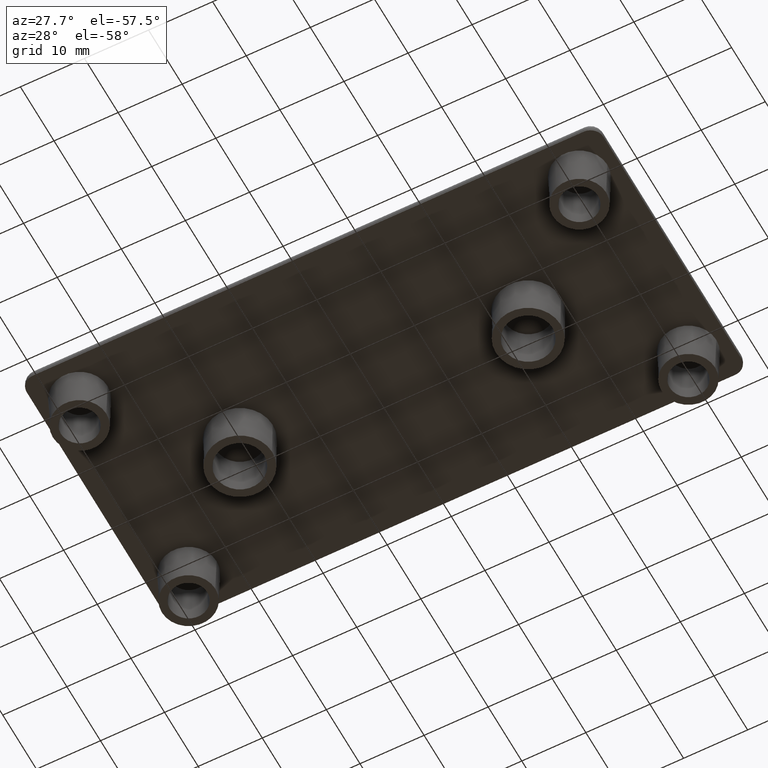
[diagram: clean part render]
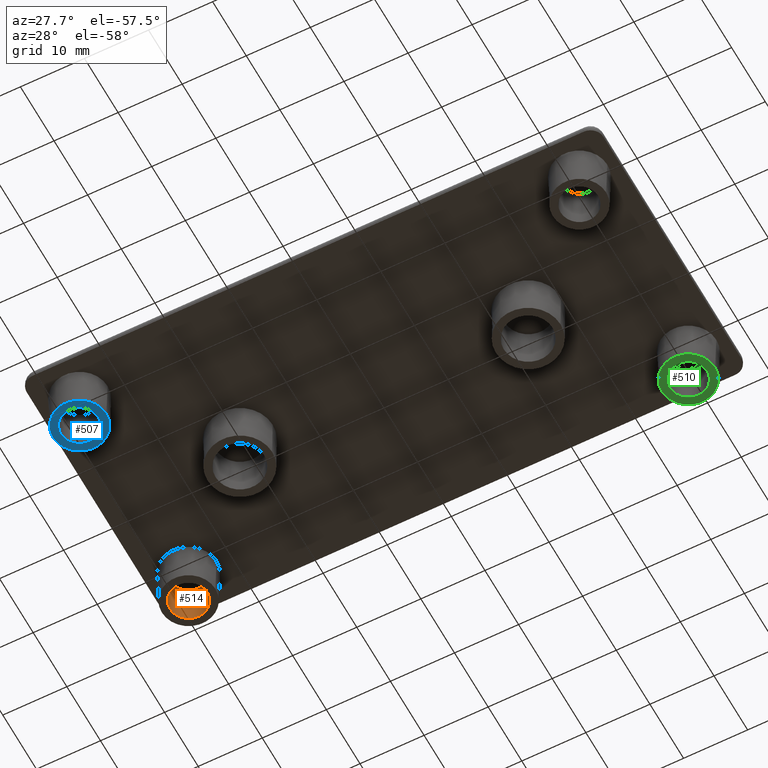
[diagram: same view with three faces highlighted in distinct colors, each labeled with its STEP entity id]
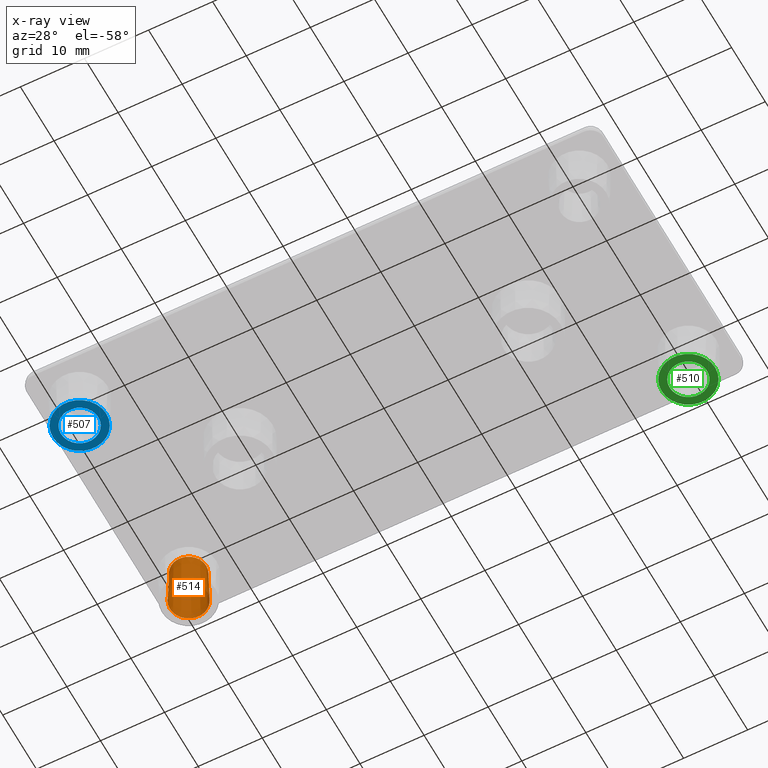
[diagram: x-ray of the same camera — body ghosted, the three highlighted faces saturated]
A machine part, auxiliary view with three faces highlighted in distinct colors.
The next image is the same camera in x-ray (body ghosted, the three faces saturated) — at least one of them is partly hidden behind the body in this view.
Their STEP definitions:

[orange] entity #514 — the highlighted conical surface has half-angle 1.5 deg.
#106=FACE_BOUND('',#194,.T.);
#130=FACE_OUTER_BOUND('',#193,.T.);
#193=EDGE_LOOP('',(#413));
#194=EDGE_LOOP('',(#414));
#242=CIRCLE('',#584,2.925);
#243=CIRCLE('',#585,2.74169854901569);
#290=VERTEX_POINT('',#894);
#291=VERTEX_POINT('',#896);
#334=EDGE_CURVE('',#290,#290,#242,.T.);
#335=EDGE_CURVE('',#291,#291,#243,.T.);
#413=ORIENTED_EDGE('',*,*,#334,.F.);
#414=ORIENTED_EDGE('',*,*,#335,.F.);
#491=CONICAL_SURFACE('',#583,2.925,1.5);
#514=ADVANCED_FACE('',(#130,#106),#491,.F.);
#583=AXIS2_PLACEMENT_3D('',#893,#721,#722);
#584=AXIS2_PLACEMENT_3D('',#895,#723,#724);
#585=AXIS2_PLACEMENT_3D('',#897,#725,#726);
#721=DIRECTION('center_axis',(0.,0.,-1.));
#722=DIRECTION('ref_axis',(-1.,0.,0.));
#723=DIRECTION('center_axis',(0.,0.,1.));
#724=DIRECTION('ref_axis',(-1.,0.,0.));
#725=DIRECTION('center_axis',(0.,0.,-1.));
#726=DIRECTION('ref_axis',(-1.,0.,0.));
#893=CARTESIAN_POINT('Origin',(-39.,16.2,-7.));
#894=CARTESIAN_POINT('',(-36.075,16.2,-7.));
#895=CARTESIAN_POINT('Origin',(-39.,16.2,-7.));
#896=CARTESIAN_POINT('',(-36.2583014509843,16.2,0.));
#897=CARTESIAN_POINT('Origin',(-39.,16.2,0.));

[blue] entity #507 — the highlighted planar face has unit normal (0, 0, 1).
#73=PLANE('',#573);
#102=FACE_BOUND('',#183,.T.);
#123=FACE_OUTER_BOUND('',#182,.T.);
#182=EDGE_LOOP('',(#402));
#183=EDGE_LOOP('',(#403));
#236=CIRCLE('',#569,2.925);
#238=CIRCLE('',#572,4.175);
#284=VERTEX_POINT('',#873);
#286=VERTEX_POINT('',#878);
#328=EDGE_CURVE('',#284,#284,#236,.T.);
#330=EDGE_CURVE('',#286,#286,#238,.T.);
#402=ORIENTED_EDGE('',*,*,#330,.T.);
#403=ORIENTED_EDGE('',*,*,#328,.T.);
#507=ADVANCED_FACE('',(#123,#102),#73,.F.);
#569=AXIS2_PLACEMENT_3D('',#874,#693,#694);
#572=AXIS2_PLACEMENT_3D('',#879,#699,#700);
#573=AXIS2_PLACEMENT_3D('',#880,#701,#702);
#693=DIRECTION('center_axis',(0.,0.,1.));
#694=DIRECTION('ref_axis',(-1.,0.,0.));
#699=DIRECTION('center_axis',(0.,0.,-1.));
#700=DIRECTION('ref_axis',(-1.,0.,0.));
#701=DIRECTION('center_axis',(0.,0.,1.));
#702=DIRECTION('ref_axis',(1.,0.,0.));
#873=CARTESIAN_POINT('',(-36.075,-16.2,-7.));
#874=CARTESIAN_POINT('Origin',(-39.,-16.2,-7.));
#878=CARTESIAN_POINT('',(-34.825,-16.2,-7.));
#879=CARTESIAN_POINT('Origin',(-39.,-16.2,-7.));
#880=CARTESIAN_POINT('Origin',(-39.,-16.2,-7.));

[green] entity #510 — the highlighted planar face has unit normal (0, 0, 1).
#74=PLANE('',#579);
#105=FACE_BOUND('',#189,.T.);
#126=FACE_OUTER_BOUND('',#188,.T.);
#188=EDGE_LOOP('',(#408));
#189=EDGE_LOOP('',(#409));
#239=CIRCLE('',#575,2.925);
#241=CIRCLE('',#578,4.175);
#287=VERTEX_POINT('',#882);
#289=VERTEX_POINT('',#887);
#331=EDGE_CURVE('',#287,#287,#239,.T.);
#333=EDGE_CURVE('',#289,#289,#241,.T.);
#408=ORIENTED_EDGE('',*,*,#333,.T.);
#409=ORIENTED_EDGE('',*,*,#331,.T.);
#510=ADVANCED_FACE('',(#126,#105),#74,.F.);
#575=AXIS2_PLACEMENT_3D('',#883,#705,#706);
#578=AXIS2_PLACEMENT_3D('',#888,#711,#712);
#579=AXIS2_PLACEMENT_3D('',#889,#713,#714);
#705=DIRECTION('center_axis',(0.,0.,1.));
#706=DIRECTION('ref_axis',(-1.,0.,0.));
#711=DIRECTION('center_axis',(0.,0.,-1.));
#712=DIRECTION('ref_axis',(-1.,0.,0.));
#713=DIRECTION('center_axis',(0.,0.,1.));
#714=DIRECTION('ref_axis',(1.,0.,0.));
#882=CARTESIAN_POINT('',(41.925,16.2,-7.));
#883=CARTESIAN_POINT('Origin',(39.,16.2,-7.));
#887=CARTESIAN_POINT('',(43.175,16.2,-7.));
#888=CARTESIAN_POINT('Origin',(39.,16.2,-7.));
#889=CARTESIAN_POINT('Origin',(39.,16.2,-7.));